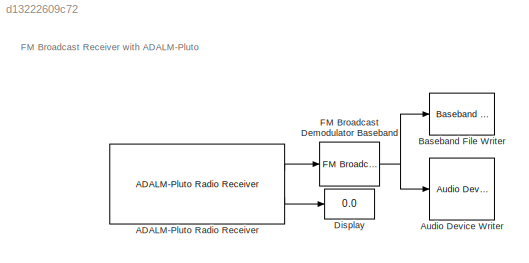
MODEL slx_d13222609c72
KIND model
CONFIG AbsTol = auto
CONFIG EnableMultiTasking = off
CONFIG FixedStep = auto
CONFIG MaxStep = auto
CONFIG MinStep = auto
CONFIG RelTol = 1e-3
CONFIG SampleTimeConstraint = Unconstrained
CONFIG Solver = VariableStepAuto
CONFIG SolverName = VariableStepAuto
CONFIG StartTime = 0.0
CONFIG StopTime = 30
BLOCK [Reference] ADALM-Pluto Radio Receiver  REF=plutoradiolib/ADALM-Pluto Radio
Receiver
  Ports = [0, 2]
  SourceBlock = plutoradiolib/ADALM-Pluto Radio\nReceiver
  SourceProductBaseCode = PLUTO
  SourceType = comm.SDRRxPluto
BLOCK [Reference] Audio Device Writer  REF=dspsnks4/Audio Device
Writer
  Ports = [1]
  SourceBlock = dspsnks4/Audio Device\nWriter
  SourceProductBaseCode = DS
  SourceType = Audio Device Writer
BLOCK [Reference] Baseband File Writer  REF=commsink2/Baseband File Writer
  Ports = [1]
  SourceBlock = commsink2/Baseband File Writer
  SourceProductBaseCode = CM
  SourceType = Baseband File Writer
BLOCK [Display] Display
  Decimation = 1
  Ports = [1]
BLOCK [Reference] FM Broadcast Demodulator Baseband  REF=commanabbnd3/FM Broadcast
Demodulator
Baseband
  Ports = [1, 1]
  SourceBlock = commanabbnd3/FM Broadcast\nDemodulator\nBaseband
  SourceProductBaseCode = CM
  SourceType = FM Broadcast Demodulator Baseband
ANNOTATION (root): FM Broadcast Receiver with ADALM-Pluto
LINE ADALM-Pluto Radio Receiver:1 -> FM Broadcast Demodulator Baseband:1
LINE ADALM-Pluto Radio Receiver:2 -> Display:1
NET FM Broadcast Demodulator Baseband:1 -> Audio Device Writer:1, Baseband File Writer:1
note: NET lines group one-source signal fan-out (src -> all destinations, sorted); 1:1 wires keep LINE
